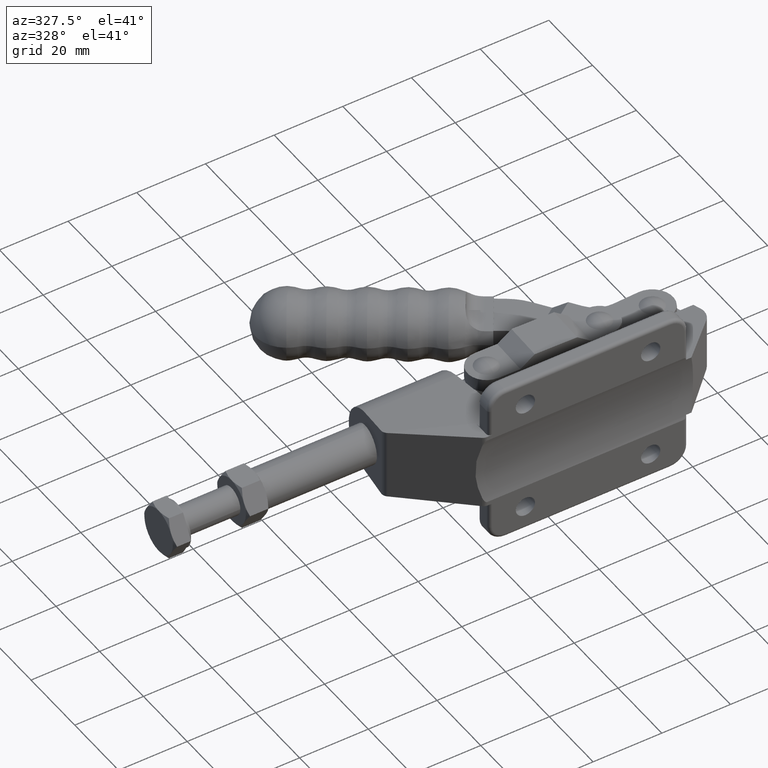
[diagram: clean part render]
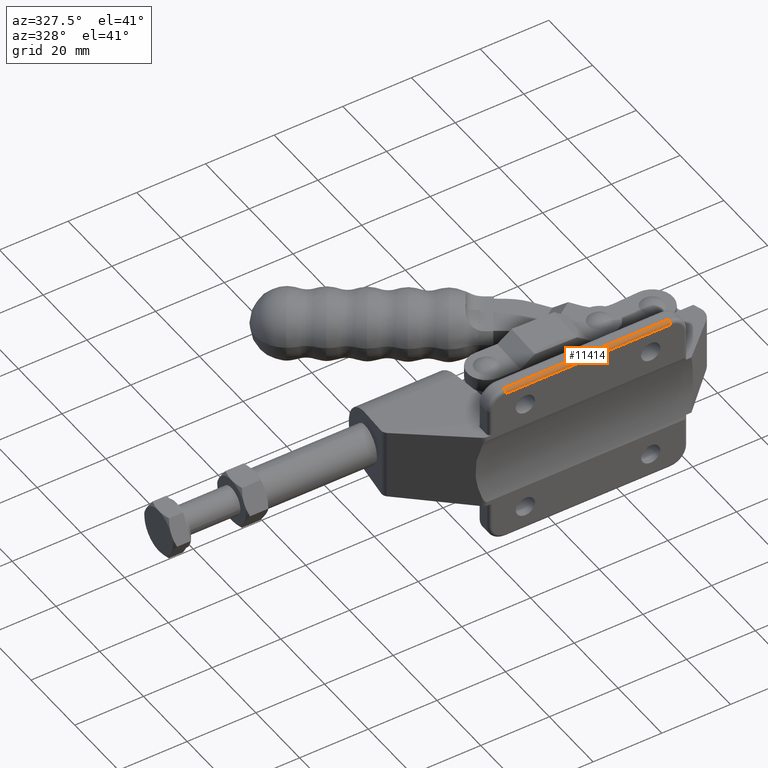
[diagram: same view with one face highlighted and labeled with its STEP entity id]
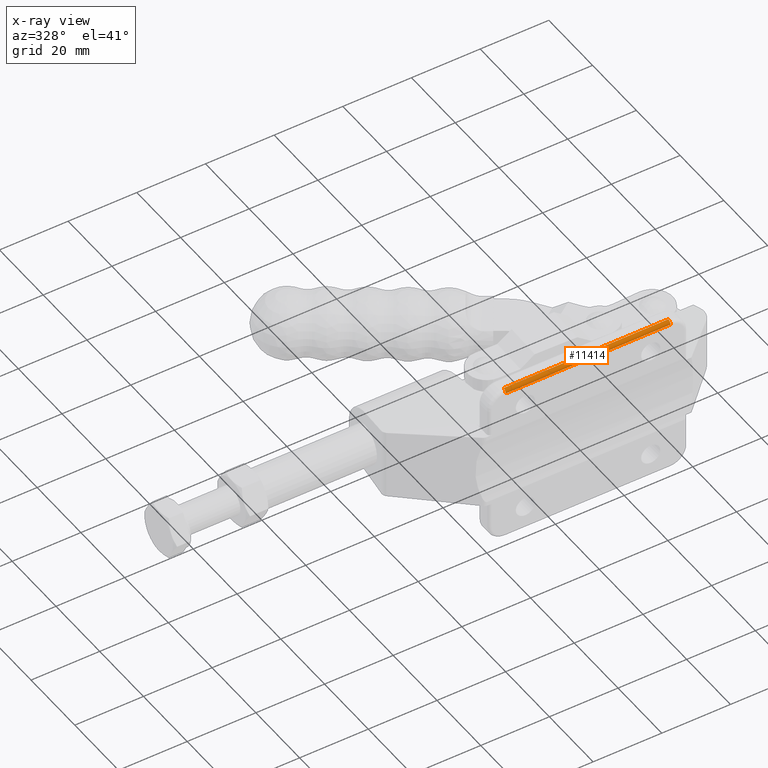
[diagram: x-ray of the same camera — body ghosted, the highlighted face saturated]
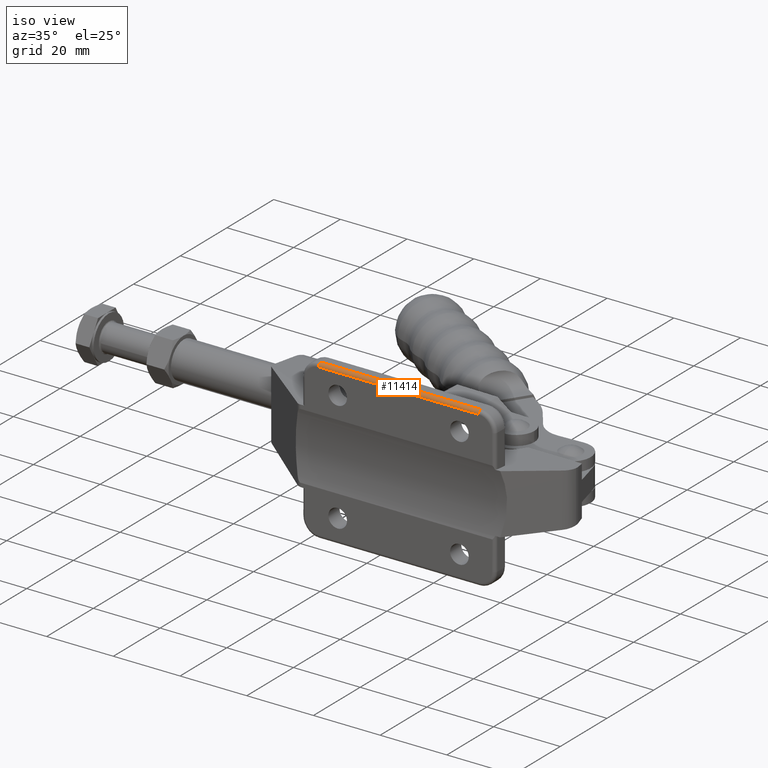
[diagram: same view with one face highlighted and labeled with its STEP entity id]
A machine part, auxiliary view. The second image highlights one B-rep face of the part: STEP entity #11414.
The next image is the same camera in x-ray: the body ghosted, the highlighted face saturated — about 0% of this face is hidden behind the body in this view.
A second angle (iso view) of the same face is appended — the face is thin or edge-on in the first view.
In plain terms, the highlighted cylindrical surface (edge-blend (fillet) strip) has radius 1 mm, axis along (-1, 0, 0).
Its self-contained STEP definition (entity closure, byte-faithful):
#953 = EDGE_CURVE ( 'NONE', #5443, #11085, #5309, .T. ) ;
#1194 = LINE ( 'NONE', #8284, #8563 ) ;
#1555 = DIRECTION ( 'NONE',  ( 1.000000000000000000, 0.0000000000000000000, 0.0000000000000000000 ) ) ;
#1860 = CARTESIAN_POINT ( 'NONE',  ( 73.50000000000001400, 0.9999999999996593800, 22.80000000000001500 ) ) ;
#1978 = VERTEX_POINT ( 'NONE', #7210 ) ;
#2062 = ORIENTED_EDGE ( 'NONE', *, *, #11564, .T. ) ;
#2680 = DIRECTION ( 'NONE',  ( 0.0000000000000000000, 0.0000000000000000000, -1.000000000000000000 ) ) ;
#2687 = CARTESIAN_POINT ( 'NONE',  ( 92.50000000000000000, -3.407248856506229500E-013, 22.80000000000001500 ) ) ;
#2942 = EDGE_CURVE ( 'NONE', #11085, #9966, #10290, .T. ) ;
#3393 = CYLINDRICAL_SURFACE ( 'NONE', #8973, 1.000000000000000900 ) ;
#3490 = EDGE_CURVE ( 'NONE', #1978, #5443, #1194, .T. ) ;
#3666 = DIRECTION ( 'NONE',  ( 1.000000000000000000, -0.0000000000000000000, -0.0000000000000000000 ) ) ;
#3817 = CIRCLE ( 'NONE', #7492, 1.000000000000000900 ) ;
#4136 = EDGE_LOOP ( 'NONE', ( #2062, #11216, #11560, #11403 ) ) ;
#5309 = CIRCLE ( 'NONE', #9091, 1.000000000000000900 ) ;
#5443 = VERTEX_POINT ( 'NONE', #10415 ) ;
#7087 = CARTESIAN_POINT ( 'NONE',  ( 25.50000000000027400, 0.9999999999996537200, 22.80000000000001500 ) ) ;
#7210 = CARTESIAN_POINT ( 'NONE',  ( 25.50000000000027400, 0.9999999999996591600, 23.80000000000001500 ) ) ;
#7492 = AXIS2_PLACEMENT_3D ( 'NONE', #7087, #1555, #8000 ) ;
#7835 = VECTOR ( 'NONE', #9144, 1000.000000000000000 ) ;
#8000 = DIRECTION ( 'NONE',  ( 0.0000000000000000000, 0.0000000000000000000, -1.000000000000000000 ) ) ;
#8260 = CARTESIAN_POINT ( 'NONE',  ( 25.50000000000027400, -3.407248856506229500E-013, 22.80000000000001500 ) ) ;
#8284 = CARTESIAN_POINT ( 'NONE',  ( 92.50000000000000000, 0.9999999999996591600, 23.80000000000001500 ) ) ;
#8556 = DIRECTION ( 'NONE',  ( 0.0000000000000000000, 0.0000000000000000000, 1.000000000000000000 ) ) ;
#8563 = VECTOR ( 'NONE', #3666, 1000.000000000000000 ) ;
#8601 = DIRECTION ( 'NONE',  ( 1.000000000000000000, 0.0000000000000000000, 0.0000000000000000000 ) ) ;
#8612 = FACE_OUTER_BOUND ( 'NONE', #4136, .T. ) ;
#8973 = AXIS2_PLACEMENT_3D ( 'NONE', #11429, #9543, #8556 ) ;
#9091 = AXIS2_PLACEMENT_3D ( 'NONE', #1860, #8601, #2680 ) ;
#9144 = DIRECTION ( 'NONE',  ( -1.000000000000000000, 0.0000000000000000000, 0.0000000000000000000 ) ) ;
#9543 = DIRECTION ( 'NONE',  ( -1.000000000000000000, 0.0000000000000000000, 0.0000000000000000000 ) ) ;
#9966 = VERTEX_POINT ( 'NONE', #8260 ) ;
#10290 = LINE ( 'NONE', #2687, #7835 ) ;
#10415 = CARTESIAN_POINT ( 'NONE',  ( 73.50000000000001400, 0.9999999999996591600, 23.80000000000001500 ) ) ;
#10893 = CARTESIAN_POINT ( 'NONE',  ( 73.50000000000001400, -3.407248856506229500E-013, 22.80000000000001500 ) ) ;
#11085 = VERTEX_POINT ( 'NONE', #10893 ) ;
#11216 = ORIENTED_EDGE ( 'NONE', *, *, #2942, .F. ) ;
#11403 = ORIENTED_EDGE ( 'NONE', *, *, #3490, .F. ) ;
#11414 = ADVANCED_FACE ( 'NONE', ( #8612 ), #3393, .T. ) ;
#11429 = CARTESIAN_POINT ( 'NONE',  ( 92.50000000000000000, 0.9999999999996593800, 22.80000000000001500 ) ) ;
#11560 = ORIENTED_EDGE ( 'NONE', *, *, #953, .F. ) ;
#11564 = EDGE_CURVE ( 'NONE', #1978, #9966, #3817, .T. ) ;